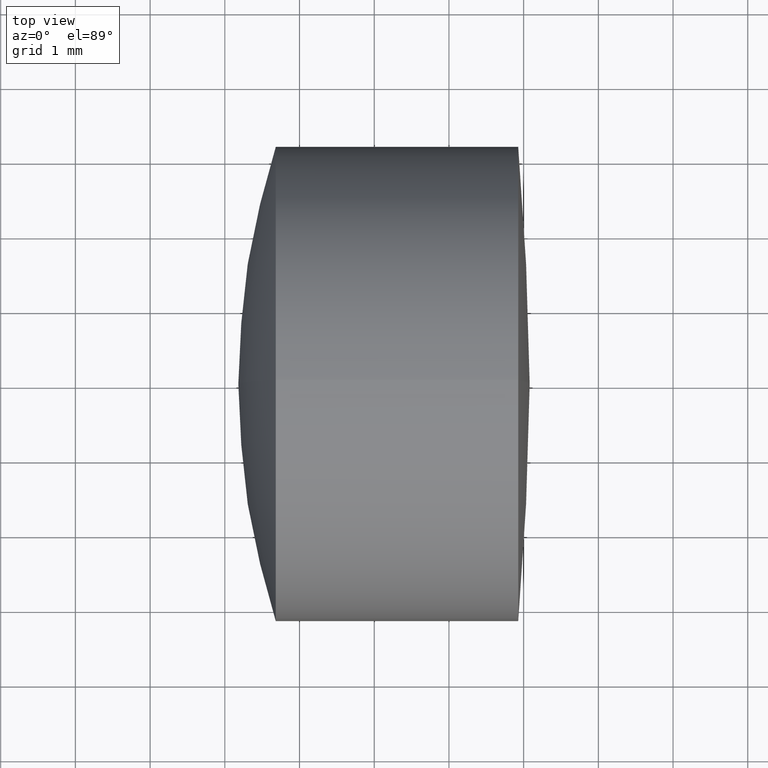
[diagram: clean part render]
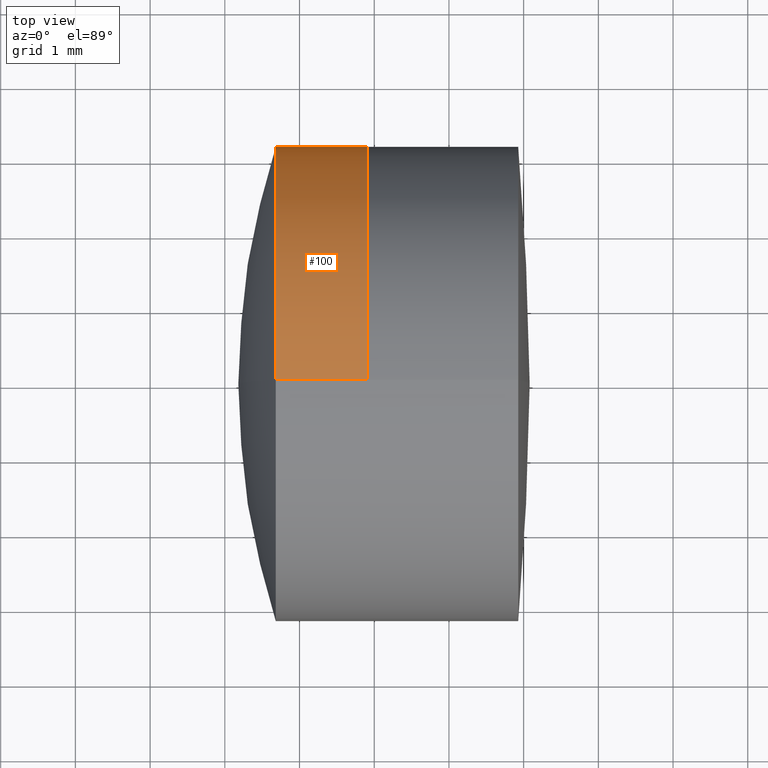
[diagram: same view with one face highlighted and labeled with its STEP entity id]
A machine part, top view. The second image highlights one B-rep face of the part: STEP entity #100.
In plain terms, the highlighted cylindrical surface (partial cylindrical patch) has radius 3.175 mm, axis along (-1, -0, -0).
Its self-contained STEP definition (entity closure, byte-faithful):
#21 = EDGE_LOOP ( 'NONE', ( #335, #108, #255, #221 ) ) ;
#47 = VERTEX_POINT ( 'NONE', #88 ) ;
#60 = CIRCLE ( 'NONE', #78, 3.175000000000000300 ) ;
#73 = CYLINDRICAL_SURFACE ( 'NONE', #258, 3.174999999999999800 ) ;
#76 = DIRECTION ( 'NONE',  ( 0.0000000000000000000, 0.0000000000000000000, 1.000000000000000000 ) ) ;
#78 = AXIS2_PLACEMENT_3D ( 'NONE', #103, #254, #76 ) ;
#80 = VERTEX_POINT ( 'NONE', #294 ) ;
#86 = DIRECTION ( 'NONE',  ( -1.000000000000000000, -0.0000000000000000000, -0.0000000000000000000 ) ) ;
#88 = CARTESIAN_POINT ( 'NONE',  ( 262.9052741446802200, 0.0000000000000000000, 3.175000000000000300 ) ) ;
#92 = CARTESIAN_POINT ( 'NONE',  ( 124.5233095260452400, 3.888253587292846100E-016, -3.174999999999999800 ) ) ;
#93 = AXIS2_PLACEMENT_3D ( 'NONE', #313, #137, #290 ) ;
#100 = ADVANCED_FACE ( 'NONE', ( #124 ), #73, .T. ) ;
#103 = CARTESIAN_POINT ( 'NONE',  ( 262.9052741446802200, 0.0000000000000000000, 0.0000000000000000000 ) ) ;
#107 = CARTESIAN_POINT ( 'NONE',  ( 124.5233095260452400, 0.0000000000000000000, 3.174999999999999800 ) ) ;
#108 = ORIENTED_EDGE ( 'NONE', *, *, #249, .T. ) ;
#115 = EDGE_CURVE ( 'NONE', #80, #277, #136, .T. ) ;
#124 = FACE_OUTER_BOUND ( 'NONE', #21, .T. ) ;
#136 = CIRCLE ( 'NONE', #93, 3.174999999999999800 ) ;
#137 = DIRECTION ( 'NONE',  ( -1.000000000000000000, -0.0000000000000000000, -0.0000000000000000000 ) ) ;
#143 = VECTOR ( 'NONE', #86, 1000.000000000000000 ) ;
#157 = CARTESIAN_POINT ( 'NONE',  ( 262.9052741446802200, 3.888253587292847100E-016, -3.175000000000000700 ) ) ;
#167 = EDGE_CURVE ( 'NONE', #47, #80, #273, .T. ) ;
#180 = VERTEX_POINT ( 'NONE', #157 ) ;
#186 = CARTESIAN_POINT ( 'NONE',  ( 261.6822753792524700, 0.0000000000000000000, -3.174999999999999800 ) ) ;
#221 = ORIENTED_EDGE ( 'NONE', *, *, #167, .F. ) ;
#249 = EDGE_CURVE ( 'NONE', #180, #277, #264, .T. ) ;
#254 = DIRECTION ( 'NONE',  ( -1.000000000000000000, -0.0000000000000000000, -0.0000000000000000000 ) ) ;
#255 = ORIENTED_EDGE ( 'NONE', *, *, #115, .F. ) ;
#258 = AXIS2_PLACEMENT_3D ( 'NONE', #268, #267, #342 ) ;
#264 = LINE ( 'NONE', #92, #333 ) ;
#267 = DIRECTION ( 'NONE',  ( -1.000000000000000000, -0.0000000000000000000, -0.0000000000000000000 ) ) ;
#268 = CARTESIAN_POINT ( 'NONE',  ( 124.5233095260452400, 0.0000000000000000000, 0.0000000000000000000 ) ) ;
#273 = LINE ( 'NONE', #107, #143 ) ;
#277 = VERTEX_POINT ( 'NONE', #186 ) ;
#286 = DIRECTION ( 'NONE',  ( -1.000000000000000000, -0.0000000000000000000, -0.0000000000000000000 ) ) ;
#288 = EDGE_CURVE ( 'NONE', #47, #180, #60, .T. ) ;
#290 = DIRECTION ( 'NONE',  ( 0.0000000000000000000, 0.0000000000000000000, 1.000000000000000000 ) ) ;
#294 = CARTESIAN_POINT ( 'NONE',  ( 261.6822753792524700, -3.888253587292846100E-016, 3.174999999999999800 ) ) ;
#313 = CARTESIAN_POINT ( 'NONE',  ( 261.6822753792524700, 0.0000000000000000000, 0.0000000000000000000 ) ) ;
#333 = VECTOR ( 'NONE', #286, 1000.000000000000000 ) ;
#335 = ORIENTED_EDGE ( 'NONE', *, *, #288, .T. ) ;
#342 = DIRECTION ( 'NONE',  ( 0.0000000000000000000, 0.0000000000000000000, 1.000000000000000000 ) ) ;